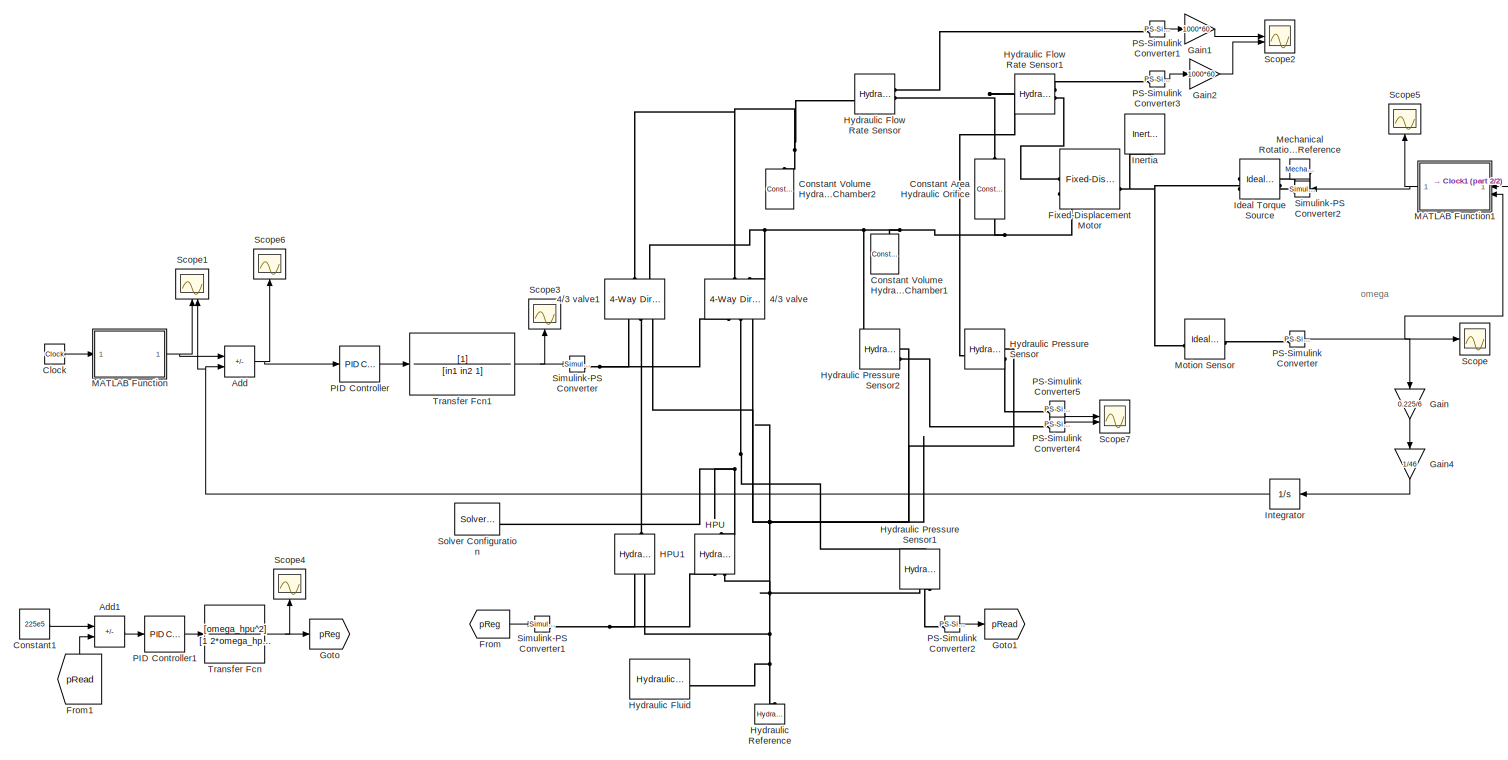
[diagram: root canvas - part 1/2, most of the canvas]
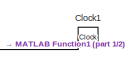
[diagram: root canvas - part 2/2, top right region]
MODEL slx_2efc4a4617ee
KIND model
CONFIG AbsTol = auto
CONFIG EnableMultiTasking = off
CONFIG FixedStep = auto
CONFIG MaxStep = auto
CONFIG MinStep = auto
CONFIG RelTol = 1e-3
CONFIG SampleTimeConstraint = Unconstrained
CONFIG SolverName = VariableStepAuto
CONFIG StartTime = 0.0
CONFIG StopTime = 20
WORKSPACE source: MATLAB code (in-file)
WORKSPACE rho = 850
WORKSPACE D = 28.1
WORKSPACE Ps = 225e5  (= 22500000)
WORKSPACE P_r = 70e5  (= 7000000)
WORKSPACE Cd = 0.7
WORKSPACE Q_r = 180/6e4  (= 0.003)
WORKSPACE AdMax = Q_r/Cd/sqrt(2/rho*P_r)
WORKSPACE V0 = 1e-4  (= 0.0001)
WORKSPACE beta = 1.2428e+9  (= 1242800000)
WORKSPACE C = (V0 +D/1000)/(4*beta)  (= 5.67267460573e-12)
WORKSPACE J = 0.0012
WORKSPACE omega_mh = D/(2*pi*1e+6*sqrt(J*C))
WORKSPACE omega_v = 50*2*pi  (= 314.159265359)
WORKSPACE Kqu = Cd*AdMax*sqrt(Ps/rho)
WORKSPACE Kmh = Kqu / ((1/2*pi)*(D/10^6))
WORKSPACE Kqp = Cd*AdMax/(2*sqrt(rho*Ps))
WORKSPACE damp = 1
WORKSPACE zeta = 1
WORKSPACE in1 = 1/(omega_v^2)  (= 1.01321183642e-05)
WORKSPACE in2 = (2*zeta)/omega_v  (= 0.00636619772368)
WORKSPACE g = 9.81
WORKSPACE zw = 0.8
WORKSPACE tw = 10
WORKSPACE ig = 46
WORKSPACE m = 9000
WORKSPACE mueq = 0.15
WORKSPACE dd = 0.45
WORKSPACE nyv = 0.92
WORKSPACE rd = dd/2  (= 0.225)
WORKSPACE omega0 = 5
WORKSPACE omegap = 1500
WORKSPACE nsh = 3
WORKSPACE gearrationsh = nsh.*2
WORKSPACE Jeff = 0.5
WORKSPACE omega_hpu = 6
WORKSPACE zeta_hpu = 1
BLOCK [Reference] 4//3 valve  REF=sh_lib/Valves/Directional Valves/4-Way Directional
Valve
  NameLocation = right
  SourceBlock = sh_lib/Valves/Directional Valves/4-Way Directional\nValve
  SourceType = 4-Way Directional\nValve
BLOCK [Reference] 4//3 valve1  REF=sh_lib/Valves/Directional Valves/4-Way Directional
Valve
  NameLocation = right
  SourceBlock = sh_lib/Valves/Directional Valves/4-Way Directional\nValve
  SourceType = 4-Way Directional\nValve
BLOCK [Sum] Add
  IconShape = rectangular
  Inputs = +-
BLOCK [Sum] Add1
  IconShape = rectangular
  Inputs = +-
BLOCK [Clock] Clock
BLOCK [Clock] Clock1
  NameLocation = top
BLOCK [Reference] Constant Area Hydraulic Orifice  REF=fl_lib/Hydraulic/Hydraulic Elements/Constant Area
Hydraulic Orifice
  NameLocation = left
  SourceBlock = fl_lib/Hydraulic/Hydraulic Elements/Constant Area\nHydraulic Orifice
  SourceType = Constant Area\nHydraulic Orifice
BLOCK [Reference] Constant Volume Hydraulic Chamber1  REF=fl_lib/Hydraulic/Hydraulic Elements/Constant Volume
Hydraulic Chamber
  NameLocation = right
  SourceBlock = fl_lib/Hydraulic/Hydraulic Elements/Constant Volume\nHydraulic Chamber
  SourceType = Constant Volume\nHydraulic Chamber
BLOCK [Reference] Constant Volume Hydraulic Chamber2  REF=fl_lib/Hydraulic/Hydraulic Elements/Constant Volume
Hydraulic Chamber
  NameLocation = right
  SourceBlock = fl_lib/Hydraulic/Hydraulic Elements/Constant Volume\nHydraulic Chamber
  SourceType = Constant Volume\nHydraulic Chamber
BLOCK [Constant] Constant1
  Value = 225e5
BLOCK [Reference] Fixed-Displacement Motor  REF=sh_lib/Pumps and Motors/Fixed-Displacement
Motor
  SourceBlock = sh_lib/Pumps and Motors/Fixed-Displacement\nMotor
  SourceType = Fixed-Displacement\nMotor
BLOCK [From] From
  GotoTag = pReg
BLOCK [From] From1
  GotoTag = pRead
  NameLocation = right
BLOCK [Gain] Gain
  Gain = 0.225/6
  NameLocation = left
BLOCK [Gain] Gain1
  Gain = 1000*60
BLOCK [Gain] Gain2
  Gain = 1000*60
BLOCK [Gain] Gain4
  Gain = 1/46
  NameLocation = left
BLOCK [Goto] Goto
  GotoTag = pReg
BLOCK [Goto] Goto1
  GotoTag = pRead
BLOCK [Reference] HPU  REF=fl_lib/Hydraulic/Hydraulic Sources/Hydraulic Pressure
Source
  NameLocation = right
  SourceBlock = fl_lib/Hydraulic/Hydraulic Sources/Hydraulic Pressure\nSource
  SourceType = Hydraulic Pressure\nSource
BLOCK [Reference] HPU1  REF=fl_lib/Hydraulic/Hydraulic Sources/Hydraulic Pressure
Source
  NameLocation = right
  SourceBlock = fl_lib/Hydraulic/Hydraulic Sources/Hydraulic Pressure\nSource
  SourceType = Hydraulic Pressure\nSource
BLOCK [Reference] Hydraulic Flow Rate Sensor  REF=fl_lib/Hydraulic/Hydraulic Sensors/Hydraulic Flow Rate
Sensor
  SourceBlock = fl_lib/Hydraulic/Hydraulic Sensors/Hydraulic Flow Rate\nSensor
  SourceType = Hydraulic Flow Rate\nSensor
BLOCK [Reference] Hydraulic Flow Rate Sensor1  REF=fl_lib/Hydraulic/Hydraulic Sensors/Hydraulic Flow Rate
Sensor
  SourceBlock = fl_lib/Hydraulic/Hydraulic Sensors/Hydraulic Flow Rate\nSensor
  SourceType = Hydraulic Flow Rate\nSensor
BLOCK [Reference] Hydraulic Fluid  REF=sh_lib/Hydraulic Utilities/Hydraulic Fluid
  SourceBlock = sh_lib/Hydraulic Utilities/Hydraulic Fluid
  SourceType = Hydraulic Fluid
BLOCK [Reference] Hydraulic Pressure Sensor  REF=fl_lib/Hydraulic/Hydraulic Sensors/Hydraulic Pressure
Sensor
  SourceBlock = fl_lib/Hydraulic/Hydraulic Sensors/Hydraulic Pressure\nSensor
  SourceType = Hydraulic Pressure\nSensor
BLOCK [Reference] Hydraulic Pressure Sensor1  REF=fl_lib/Hydraulic/Hydraulic Sensors/Hydraulic Pressure
Sensor
  NameLocation = left
  SourceBlock = fl_lib/Hydraulic/Hydraulic Sensors/Hydraulic Pressure\nSensor
  SourceType = Hydraulic Pressure\nSensor
BLOCK [Reference] Hydraulic Pressure Sensor2  REF=fl_lib/Hydraulic/Hydraulic Sensors/Hydraulic Pressure
Sensor
  SourceBlock = fl_lib/Hydraulic/Hydraulic Sensors/Hydraulic Pressure\nSensor
  SourceType = Hydraulic Pressure\nSensor
BLOCK [Reference] Hydraulic Reference  REF=fl_lib/Hydraulic/Hydraulic Elements/Hydraulic Reference
  NameLocation = right
  SourceBlock = fl_lib/Hydraulic/Hydraulic Elements/Hydraulic Reference
  SourceType = Hydraulic Reference
BLOCK [Reference] Ideal Torque Source  REF=fl_lib/Mechanical/Mechanical Sources/Ideal Torque Source
  NameLocation = top
  SourceBlock = fl_lib/Mechanical/Mechanical Sources/Ideal Torque Source
  SourceType = Ideal Torque Source
BLOCK [Reference] Inertia  REF=fl_lib/Mechanical/Rotational Elements/Inertia
  NameLocation = left
  SourceBlock = fl_lib/Mechanical/Rotational Elements/Inertia
  SourceType = Inertia
  Tag = Factory Generic
BLOCK [Integrator] Integrator
  NameLocation = top
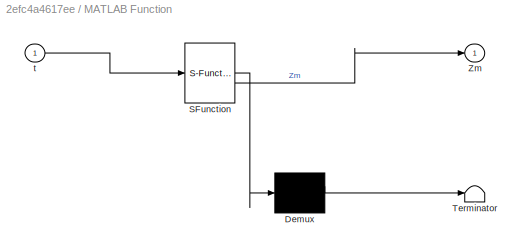
BLOCK [SubSystem] MATLAB Function
  ErrorFcn = Stateflow.Translate.translate
  LibrarySourceBlock = simulink/User-Defined\nFunctions/MATLAB Function
  PermitHierarchicalResolution = ExplicitOnly
  SFBlockType = MATLAB Function
  TreatAsAtomicUnit = on
BLOCK [Demux] MATLAB Function/ Demux 
  Outputs = 1
BLOCK [S-Function] MATLAB Function/ SFunction 
  EnableBusSupport = on
  FunctionName = sf_sfun
  PortCounts = [1 2]
  SFcnIsStateOwnerBlock = off
  SFunctionDeploymentMode = off
  Tag = Stateflow S-Function 2
BLOCK [Terminator] MATLAB Function/ Terminator 
BLOCK [Outport] MATLAB Function/Zm
BLOCK [Inport] MATLAB Function/t
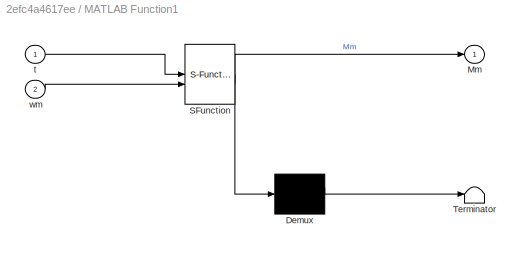
BLOCK [SubSystem] MATLAB Function1
  ErrorFcn = Stateflow.Translate.translate
  NameLocation = top
  PermitHierarchicalResolution = ExplicitOnly
  SFBlockType = MATLAB Function
  TreatAsAtomicUnit = on
BLOCK [Demux] MATLAB Function1/ Demux 
  Outputs = 1
BLOCK [S-Function] MATLAB Function1/ SFunction 
  EnableBusSupport = on
  FunctionName = sf_sfun
  PortCounts = [2 2]
  SFcnIsStateOwnerBlock = off
  SFunctionDeploymentMode = off
  Tag = Stateflow S-Function 1
BLOCK [Terminator] MATLAB Function1/ Terminator 
BLOCK [Outport] MATLAB Function1/Mm
BLOCK [Inport] MATLAB Function1/t
BLOCK [Inport] MATLAB Function1/wm
  Port = 2
BLOCK [Reference] Mechanical Rotational Reference  REF=fl_lib/Mechanical/Rotational Elements/Mechanical
Rotational Reference
  NameLocation = top
  SourceBlock = fl_lib/Mechanical/Rotational Elements/Mechanical\nRotational Reference
  SourceType = Mechanical\nRotational Reference
BLOCK [Reference] Motion Sensor  REF=fl_lib/Mechanical/Mechanical Sensors/Ideal Rotational
Motion Sensor
  SourceBlock = fl_lib/Mechanical/Mechanical Sensors/Ideal Rotational\nMotion Sensor
  SourceType = Ideal Rotational\nMotion Sensor
  Tag = Factory Generic
BLOCK [Reference] PID Controller  REF=slpidlib/PID Controller
  LibrarySourceBlock = simulink/Continuous/PID Controller
  SourceBlock = slpidlib/PID Controller
  SourceType = PID 1dof
BLOCK [Reference] PID Controller1  REF=slpidlib/PID Controller
  SourceBlock = slpidlib/PID Controller
  SourceType = PID 1dof
BLOCK [Reference] PS-Simulink Converter  REF=nesl_utility/PS-Simulink
Converter
  SourceBlock = nesl_utility/PS-Simulink\nConverter
  SourceType = PS-Simulink\nConverter
BLOCK [Reference] PS-Simulink Converter1  REF=nesl_utility/PS-Simulink
Converter
  SourceBlock = nesl_utility/PS-Simulink\nConverter
  SourceType = PS-Simulink\nConverter
BLOCK [Reference] PS-Simulink Converter2  REF=nesl_utility/PS-Simulink
Converter
  SourceBlock = nesl_utility/PS-Simulink\nConverter
  SourceType = PS-Simulink\nConverter
BLOCK [Reference] PS-Simulink Converter3  REF=nesl_utility/PS-Simulink
Converter
  SourceBlock = nesl_utility/PS-Simulink\nConverter
  SourceType = PS-Simulink\nConverter
BLOCK [Reference] PS-Simulink Converter4  REF=nesl_utility/PS-Simulink
Converter
  SourceBlock = nesl_utility/PS-Simulink\nConverter
  SourceType = PS-Simulink\nConverter
BLOCK [Reference] PS-Simulink Converter5  REF=nesl_utility/PS-Simulink
Converter
  SourceBlock = nesl_utility/PS-Simulink\nConverter
  SourceType = PS-Simulink\nConverter
BLOCK [Scope] Scope
  Floating = off
  NumInputPorts = 1
  ScopeSpecificationString = Simulink.scopes.TimeScopeBlockCfg('CurrentConfiguration', extmgr.ConfigurationSet(extmgr.Configuration('Core','General UI',true),extmgr.Configuration('Core','Source UI',true),extmgr.Configuration('Sources','WiredSimulink',true),extmgr.Configuration('Visuals','Time Domain',true,'SerializedDisplays',{struct('MinYLimReal','-999.72613','MaxYLimReal','796.35237','YLabelReal','','MinYLimMag',' 0.00000',...<+1429ch>
BLOCK [Scope] Scope1
  Floating = off
  NameLocation = right
  NumInputPorts = 2
  ScopeSpecificationString = Simulink.scopes.TimeScopeBlockCfg('CurrentConfiguration', extmgr.ConfigurationSet(extmgr.Configuration('Core','General UI',true),extmgr.Configuration('Core','Source UI',true),extmgr.Configuration('Sources','WiredSimulink',true,'DataLoggingVariableName','ScopeData1'),extmgr.Configuration('Visuals','Time Domain',true,'SerializedDisplays',{struct('MinYLimReal','-1.00000','MaxYLimReal','1.00000','YLab...<+1483ch>
BLOCK [Scope] Scope2
  Floating = off
  NumInputPorts = 2
  ScopeSpecificationString = Simulink.scopes.TimeScopeBlockCfg('CurrentConfiguration', extmgr.ConfigurationSet(extmgr.Configuration('Core','General UI',true),extmgr.Configuration('Core','Source UI',true),extmgr.Configuration('Sources','WiredSimulink',true,'DataLoggingVariableName','ScopeData2'),extmgr.Configuration('Visuals','Time Domain',true,'SerializedDisplays',{struct('MinYLimReal','-244.19241','MaxYLimReal','211.36098','...<+1795ch>
BLOCK [Scope] Scope3
  Floating = off
  NameLocation = right
  NumInputPorts = 1
  ScopeSpecificationString = Simulink.scopes.TimeScopeBlockCfg('CurrentConfiguration', extmgr.ConfigurationSet(extmgr.Configuration('Core','General UI',true),extmgr.Configuration('Core','Source UI',true),extmgr.Configuration('Sources','WiredSimulink',true,'DataLoggingVariableName','ScopeData3'),extmgr.Configuration('Visuals','Time Domain',true,'SerializedDisplays',{struct('MinYLimReal','-0.65359','MaxYLimReal','0.27401','YLab...<+1418ch>
BLOCK [Scope] Scope4
  Floating = off
  NameLocation = right
  NumInputPorts = 1
  ScopeSpecificationString = Simulink.scopes.TimeScopeBlockCfg('CurrentConfiguration', extmgr.ConfigurationSet(extmgr.Configuration('Core','General UI',true),extmgr.Configuration('Core','Source UI',true),extmgr.Configuration('Sources','WiredSimulink',true,'DataLoggingVariableName','ScopeData1'),extmgr.Configuration('Visuals','Time Domain',true,'SerializedDisplays',{struct('MinYLimReal','14107142.85714','MaxYLimReal','34107142...<+1444ch>
BLOCK [Scope] Scope5
  Floating = off
  NameLocation = right
  NumInputPorts = 1
  ScopeSpecificationString = Simulink.scopes.TimeScopeBlockCfg('CurrentConfiguration', extmgr.ConfigurationSet(extmgr.Configuration('Core','General UI',true,'FigureColor',[0.941176470588235 0.941176470588235 0.941176470588235]),extmgr.Configuration('Core','Source UI',true),extmgr.Configuration('Sources','WiredSimulink',true,'DataLoggingVariableName','ScopeData3'),extmgr.Configuration('Visuals','Time Domain',true,'SerializedDi...<+1754ch>
BLOCK [Scope] Scope6
  Floating = off
  NameLocation = right
  NumInputPorts = 1
  ScopeSpecificationString = Simulink.scopes.TimeScopeBlockCfg('CurrentConfiguration', extmgr.ConfigurationSet(extmgr.Configuration('Core','General UI',true),extmgr.Configuration('Core','Source UI',true),extmgr.Configuration('Sources','WiredSimulink',true,'DataLoggingVariableName','ScopeData1'),extmgr.Configuration('Visuals','Time Domain',true,'SerializedDisplays',{struct('MinYLimReal','-0.02244','MaxYLimReal','0.00595','YLab...<+1461ch>
BLOCK [Scope] Scope7
  Floating = off
  NumInputPorts = 2
  ScopeSpecificationString = Simulink.scopes.TimeScopeBlockCfg('CurrentConfiguration', extmgr.ConfigurationSet(extmgr.Configuration('Core','General UI',true),extmgr.Configuration('Core','Source UI',true),extmgr.Configuration('Sources','WiredSimulink',true,'DataLoggingVariableName','ScopeData1'),extmgr.Configuration('Visuals','Time Domain',true,'SerializedDisplays',{struct('MinYLimReal','-1040504.13755','MaxYLimReal','31831785...<+1888ch>
BLOCK [Reference] Simulink-PS Converter  REF=nesl_utility/Simulink-PS
Converter
  SourceBlock = nesl_utility/Simulink-PS\nConverter
  SourceType = Simulink-PS\nConverter
BLOCK [Reference] Simulink-PS Converter1  REF=nesl_utility/Simulink-PS
Converter
  SourceBlock = nesl_utility/Simulink-PS\nConverter
  SourceType = Simulink-PS\nConverter
BLOCK [Reference] Simulink-PS Converter2  REF=nesl_utility/Simulink-PS
Converter
  NameLocation = top
  SourceBlock = nesl_utility/Simulink-PS\nConverter
  SourceType = Simulink-PS\nConverter
BLOCK [Reference] Solver Configuration  REF=nesl_utility/Solver
Configuration
  SourceBlock = nesl_utility/Solver\nConfiguration
  SourceType = Solver\nConfiguration
BLOCK [TransferFcn] Transfer Fcn
  Denominator = [1 2*omega_hpu*zeta_hpu *omega_hpu^2]
  Numerator = [omega_hpu^2]
BLOCK [TransferFcn] Transfer Fcn1
  Denominator = [in1 in2 1]
ANNOTATION (root): omega
LINE Add1:1 -> PID Controller1:1
NET Add:1 -> PID Controller:1, Scope6:1
LINE Clock1:1 -> MATLAB Function1:1
LINE Clock:1 -> MATLAB Function:1
LINE Constant1:1 -> Add1:1
LINE From1:1 -> Add1:2
LINE From:1 -> Simulink-PS Converter1:1
LINE Gain1:1 -> Scope2:1
LINE Gain2:1 -> Scope2:2
LINE Gain4:1 -> Integrator:1
LINE Gain:1 -> Gain4:1
NET Integrator:1 -> Add:2, Scope1:2
NET MATLAB Function1:1 -> Scope5:1, Simulink-PS Converter2:1
NET MATLAB Function:1 -> Add:1, Scope1:1
LINE PID Controller1:1 -> Transfer Fcn:1
LINE PID Controller:1 -> Transfer Fcn1:1
LINE PS-Simulink Converter1:1 -> Gain1:1
LINE PS-Simulink Converter2:1 -> Goto1:1
LINE PS-Simulink Converter3:1 -> Gain2:1
LINE PS-Simulink Converter4:1 -> Scope7:2
LINE PS-Simulink Converter5:1 -> Scope7:1
NET PS-Simulink Converter:1 -> Gain:1, MATLAB Function1:2, Scope:1
NET Transfer Fcn1:1 -> Scope3:1, Simulink-PS Converter:1
NET Transfer Fcn:1 -> Goto:1, Scope4:1
PNET net1: 4//3 valve1:LConn1 -- 4//3 valve:LConn1 -- Constant Volume Hydraulic Chamber2:LConn1 -- Hydraulic Flow Rate Sensor:LConn1
PNET net2: 4//3 valve1:LConn2 -- 4//3 valve:LConn2 -- Constant Area Hydraulic Orifice:RConn1 -- Constant Volume Hydraulic Chamber1:LConn1 -- Fixed-Displacement Motor:LConn2 -- Hydraulic Pressure Sensor2:LConn1
PNET net3: 4//3 valve1:RConn1 -- 4//3 valve:RConn1 -- Simulink-PS Converter:RConn1
PLINE 4//3 valve1:RConn2 -- HPU1:LConn1
PNET net4: 4//3 valve1:RConn3 -- 4//3 valve:RConn3 -- HPU1:RConn2 -- HPU:RConn2 -- Hydraulic Fluid:RConn1 -- Hydraulic Pressure Sensor1:RConn1 -- Hydraulic Pressure Sensor2:RConn1 -- Hydraulic Pressure Sensor:RConn1 -- Hydraulic Reference:LConn1
PNET net5: 4//3 valve:RConn2 -- HPU:LConn1 -- Hydraulic Pressure Sensor1:LConn1 -- Solver Configuration:RConn1
PNET net6: Constant Area Hydraulic Orifice:LConn1 -- Hydraulic Flow Rate Sensor1:LConn1 -- Hydraulic Flow Rate Sensor:RConn2 -- Hydraulic Pressure Sensor:LConn1
PLINE Fixed-Displacement Motor:LConn1 -- Hydraulic Flow Rate Sensor1:RConn2
PNET net7: Fixed-Displacement Motor:RConn1 -- Ideal Torque Source:LConn1 -- Inertia:LConn1 -- Motion Sensor:LConn1
PNET net8: HPU1:RConn1 -- HPU:RConn1 -- Simulink-PS Converter1:RConn1
PLINE Hydraulic Flow Rate Sensor1:RConn1 -- PS-Simulink Converter3:LConn1
PLINE Hydraulic Flow Rate Sensor:RConn1 -- PS-Simulink Converter1:LConn1
PLINE Hydraulic Pressure Sensor1:RConn2 -- PS-Simulink Converter2:LConn1
PLINE Hydraulic Pressure Sensor2:RConn2 -- PS-Simulink Converter4:LConn1
PLINE Hydraulic Pressure Sensor:RConn2 -- PS-Simulink Converter5:LConn1
PLINE Ideal Torque Source:RConn1 -- Simulink-PS Converter2:RConn1
PLINE Ideal Torque Source:RConn2 -- Mechanical Rotational Reference:LConn1
PLINE Motion Sensor:RConn2 -- PS-Simulink Converter:LConn1
note: NET lines group one-source signal fan-out (src -> all destinations, sorted); 1:1 wires keep LINE; PNET lines group multi-terminal physical nets as a canonical sorted terminal list (undirected conserving connections); 2-terminal nets keep the pairwise PLINE form
CHART MATLAB Function states=1 transitions=1
  STATE_LABEL 'eML_blk_kernel()'
  STATE_LABEL 'SCRIPT:\nfunction Zm = fcn(t)\n\nZm = -0.8*sin((pi)/5 * t);\ny = Zm;\n'
CHART MATLAB Function1 states=1 transitions=1
  STATE_LABEL 'eML_blk_kernel()'
  STATE_LABEL 'SCRIPT:\nfunction Mm = fcn(t, wm)\nrd = 0.225;\nm = 9000;\ng = 9.81;\ndd = 0.45;\nnsh = 3;\ni_g = 46;\nmu_eq = 0.15;\nw0 = 5; \n\nMm = ((m*g*dd)/(2*nsh*2*i_g)) * (1 + mu_eq*tanh(wm/w0)); \n'
CHART  states=0 transitions=0
CHART  states=0 transitions=0
